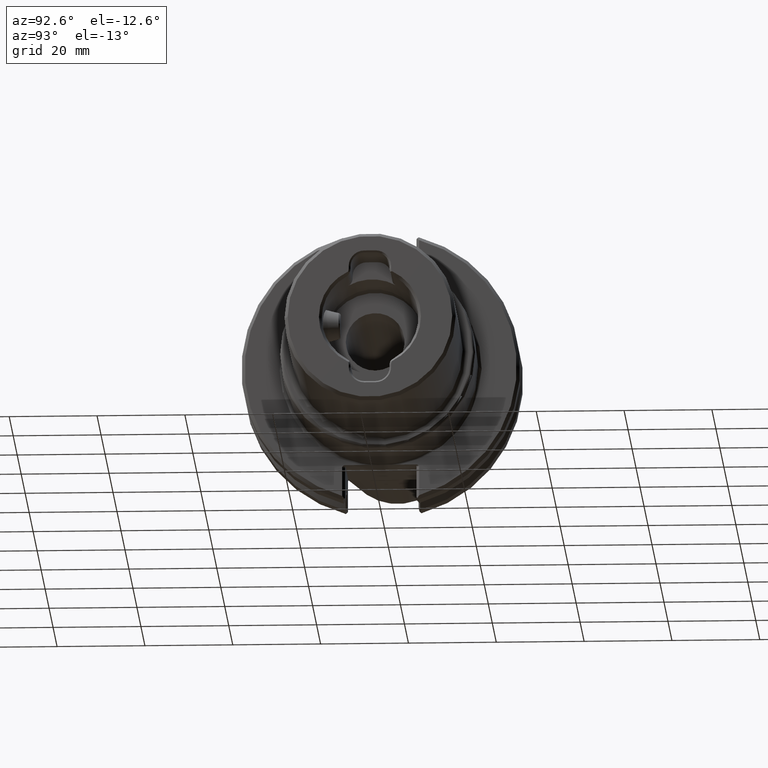
[diagram: clean part render]
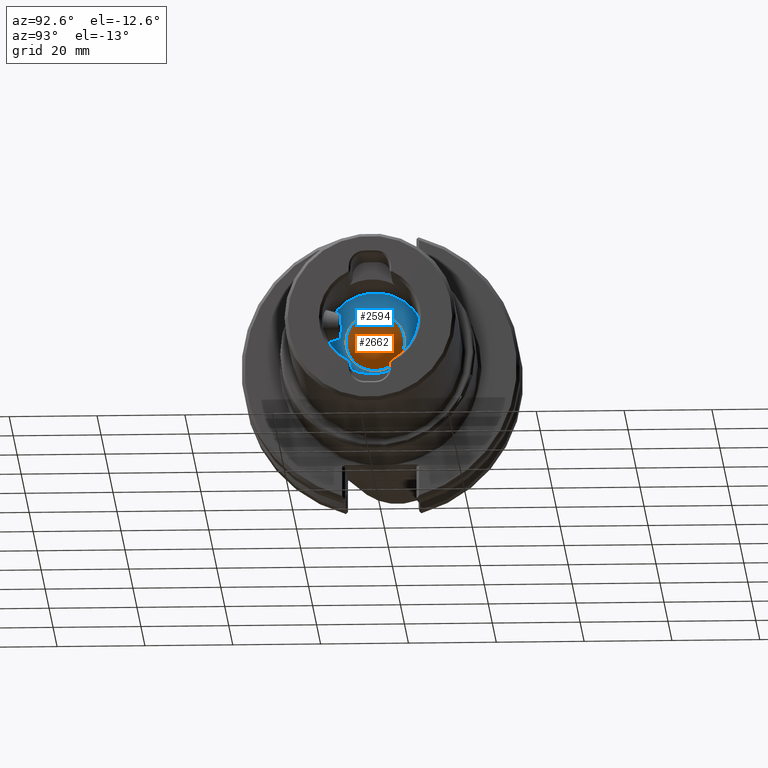
[diagram: same view with the hole feature highlighted: cylindrical wall and planar end face, labeled with their STEP entity ids]
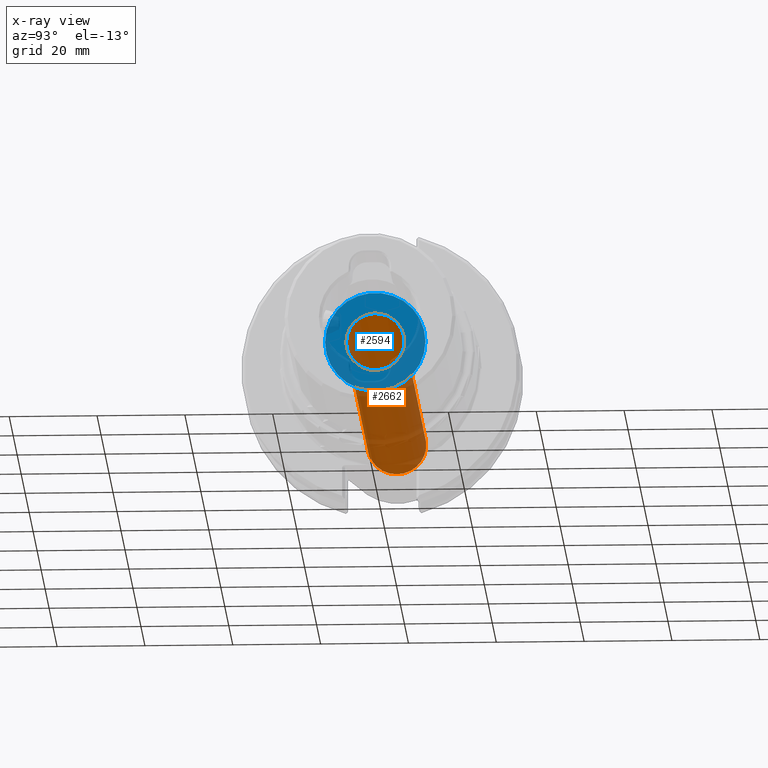
[diagram: x-ray of the same camera — body ghosted, the hole faces saturated]
A machine part, auxiliary view. The highlighted faces form one hole feature of diameter 13.3858 mm: the cylindrical wall (entity #2662, orange) and its adjacent planar end face (entity #2594, blue) — they share a circular edge in the B-rep.
The next image is the same camera in x-ray (body ghosted, the hole faces saturated) — the bore reads through the body.
Wall:
#339=LINE('',#5760,#515);
#515=VECTOR('',#3659,0.2635);
#577=CYLINDRICAL_SURFACE('',#2992,0.2635);
#694=FACE_OUTER_BOUND('',#845,.T.);
#845=EDGE_LOOP('',(#2360,#2361,#2362,#2363,#2364));
#938=CIRCLE('',#2869,0.2635);
#939=CIRCLE('',#2870,0.2635);
#986=CIRCLE('',#2993,0.2635);
#1147=VERTEX_POINT('',#4211);
#1148=VERTEX_POINT('',#4212);
#1289=VERTEX_POINT('',#5758);
#1454=EDGE_CURVE('',#1147,#1148,#938,.T.);
#1455=EDGE_CURVE('',#1148,#1147,#939,.T.);
#1669=EDGE_CURVE('',#1289,#1289,#986,.T.);
#1670=EDGE_CURVE('',#1289,#1148,#339,.T.);
#2360=ORIENTED_EDGE('',*,*,#1669,.F.);
#2361=ORIENTED_EDGE('',*,*,#1670,.T.);
#2362=ORIENTED_EDGE('',*,*,#1454,.F.);
#2363=ORIENTED_EDGE('',*,*,#1455,.F.);
#2364=ORIENTED_EDGE('',*,*,#1670,.F.);
#2662=ADVANCED_FACE('',(#694),#577,.F.);
#2869=AXIS2_PLACEMENT_3D('',#4213,#3316,#3317);
#2870=AXIS2_PLACEMENT_3D('',#4214,#3318,#3319);
#2992=AXIS2_PLACEMENT_3D('',#5757,#3655,#3656);
#2993=AXIS2_PLACEMENT_3D('',#5759,#3657,#3658);
#3316=DIRECTION('center_axis',(-1.,0.,0.));
#3317=DIRECTION('ref_axis',(0.,1.,0.));
#3318=DIRECTION('center_axis',(-1.,0.,0.));
#3319=DIRECTION('ref_axis',(0.,1.,0.));
#3655=DIRECTION('center_axis',(-1.,-1.16523256636576E-36,0.));
#3656=DIRECTION('ref_axis',(0.,0.,1.));
#3657=DIRECTION('center_axis',(1.,1.16523256636576E-36,0.));
#3658=DIRECTION('ref_axis',(0.,0.,1.));
#3659=DIRECTION('',(1.,1.16523256636576E-36,0.));
#4211=CARTESIAN_POINT('',(1.823,-0.2635,3.22694431575328E-17));
#4212=CARTESIAN_POINT('',(1.823,-3.22694431575328E-17,-0.2635));
#4213=CARTESIAN_POINT('Origin',(1.823,0.,0.));
#4214=CARTESIAN_POINT('Origin',(1.823,0.,0.));
#5757=CARTESIAN_POINT('Origin',(-1.437,-3.28246013945234E-36,0.));
#5758=CARTESIAN_POINT('',(-2.4385,3.22683774232196E-17,-0.2635));
#5759=CARTESIAN_POINT('Origin',(-2.4385,-4.44944055466765E-36,0.));
#5760=CARTESIAN_POINT('',(-1.437,-3.22694431575328E-17,-0.2635));
End face:
#127=FACE_BOUND('',#775,.T.);
#148=PLANE('',#2868);
#626=FACE_OUTER_BOUND('',#774,.T.);
#774=EDGE_LOOP('',(#1970,#1971));
#775=EDGE_LOOP('',(#1972,#1973));
#936=CIRCLE('',#2866,0.45);
#937=CIRCLE('',#2867,0.45);
#938=CIRCLE('',#2869,0.2635);
#939=CIRCLE('',#2870,0.2635);
#1145=VERTEX_POINT('',#4205);
#1146=VERTEX_POINT('',#4207);
#1147=VERTEX_POINT('',#4211);
#1148=VERTEX_POINT('',#4212);
#1452=EDGE_CURVE('',#1145,#1146,#936,.T.);
#1453=EDGE_CURVE('',#1146,#1145,#937,.T.);
#1454=EDGE_CURVE('',#1147,#1148,#938,.T.);
#1455=EDGE_CURVE('',#1148,#1147,#939,.T.);
#1970=ORIENTED_EDGE('',*,*,#1453,.F.);
#1971=ORIENTED_EDGE('',*,*,#1452,.F.);
#1972=ORIENTED_EDGE('',*,*,#1454,.T.);
#1973=ORIENTED_EDGE('',*,*,#1455,.T.);
#2594=ADVANCED_FACE('',(#626,#127),#148,.F.);
#2866=AXIS2_PLACEMENT_3D('',#4208,#3310,#3311);
#2867=AXIS2_PLACEMENT_3D('',#4209,#3312,#3313);
#2868=AXIS2_PLACEMENT_3D('',#4210,#3314,#3315);
#2869=AXIS2_PLACEMENT_3D('',#4213,#3316,#3317);
#2870=AXIS2_PLACEMENT_3D('',#4214,#3318,#3319);
#3310=DIRECTION('center_axis',(-1.,0.,0.));
#3311=DIRECTION('ref_axis',(0.,1.,0.));
#3312=DIRECTION('center_axis',(-1.,0.,0.));
#3313=DIRECTION('ref_axis',(0.,1.,0.));
#3314=DIRECTION('center_axis',(-1.,0.,0.));
#3315=DIRECTION('ref_axis',(0.,0.,1.));
#3316=DIRECTION('center_axis',(-1.,0.,0.));
#3317=DIRECTION('ref_axis',(0.,1.,0.));
#3318=DIRECTION('center_axis',(-1.,0.,0.));
#3319=DIRECTION('ref_axis',(0.,1.,0.));
#4205=CARTESIAN_POINT('',(1.823,-0.45,5.51091059616309E-17));
#4207=CARTESIAN_POINT('',(1.823,0.45,0.));
#4208=CARTESIAN_POINT('Origin',(1.823,0.,0.));
#4209=CARTESIAN_POINT('Origin',(1.823,0.,0.));
#4210=CARTESIAN_POINT('Origin',(1.823,0.225,0.));
#4211=CARTESIAN_POINT('',(1.823,-0.2635,3.22694431575328E-17));
#4212=CARTESIAN_POINT('',(1.823,-3.22694431575328E-17,-0.2635));
#4213=CARTESIAN_POINT('Origin',(1.823,0.,0.));
#4214=CARTESIAN_POINT('Origin',(1.823,0.,0.));